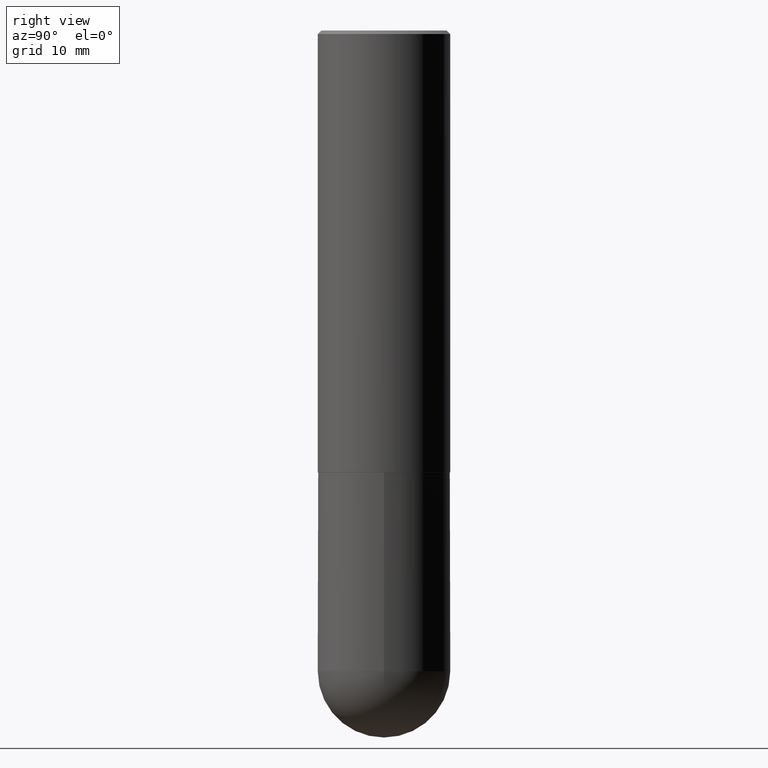
[diagram: clean part render]
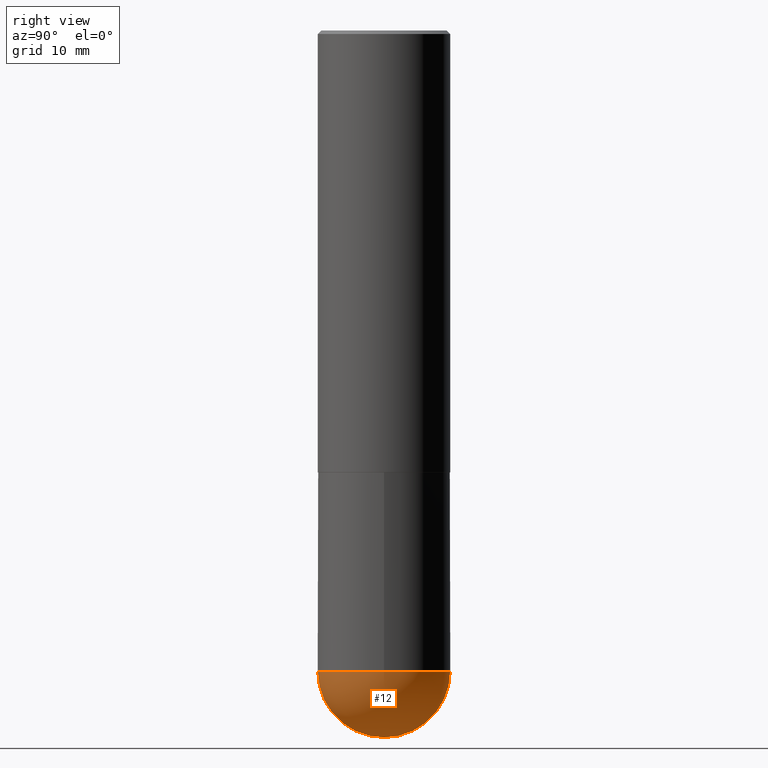
[diagram: same view with one face highlighted and labeled with its STEP entity id]
A machine part, right view. The second image highlights one B-rep face of the part: STEP entity #12.
In plain terms, the highlighted spherical surface has radius 9.525 mm.
Its self-contained STEP definition (entity closure, byte-faithful):
#2 = DIRECTION ( 'NONE',  ( -2.445468806185136597E-29, 3.491481338843145583E-15, 1.000000000000000000 ) ) ;
#4 = DIRECTION ( 'NONE',  ( 1.000000000000000000, -6.982962677686265922E-15, 4.883557194083112340E-29 ) ) ;
#9 = DIRECTION ( 'NONE',  ( -2.445468806185136597E-29, 3.491481338843145583E-15, 1.000000000000000000 ) ) ;
#12 = ADVANCED_FACE ( 'NONE', ( #86 ), #46, .T. ) ;
#14 = VERTEX_POINT ( 'NONE', #249 ) ;
#27 = DIRECTION ( 'NONE',  ( 6.982962677686266711E-15, 1.000000000000000000, -2.913971193241878005E-15 ) ) ;
#33 = DIRECTION ( 'NONE',  ( 6.982962677686265922E-15, 1.000000000000000000, 0.000000000000000000 ) ) ;
#40 = ORIENTED_EDGE ( 'NONE', *, *, #233, .F. ) ;
#46 = SPHERICAL_SURFACE ( 'NONE', #59, 0.3750000000000003886 ) ;
#59 = AXIS2_PLACEMENT_3D ( 'NONE', #83, #114, #27 ) ;
#63 = EDGE_CURVE ( 'NONE', #14, #398, #313, .T. ) ;
#66 = AXIS2_PLACEMENT_3D ( 'NONE', #213, #80, #349 ) ;
#69 = CARTESIAN_POINT ( 'NONE',  ( 8.864824422421120163E-29, -1.265661985330640259E-14, -3.624999999999999556 ) ) ;
#70 = VERTEX_POINT ( 'NONE', #314 ) ;
#73 = CIRCLE ( 'NONE', #151, 0.3750000000000003886 ) ;
#80 = DIRECTION ( 'NONE',  ( -1.000000000000000000, 7.105427357601001070E-15, -4.926315508542082329E-29 ) ) ;
#83 = CARTESIAN_POINT ( 'NONE',  ( 8.533704644507233916E-29, -1.313080222144645289E-14, -3.624999999999999556 ) ) ;
#86 = FACE_OUTER_BOUND ( 'NONE', #174, .T. ) ;
#98 = VERTEX_POINT ( 'NONE', #144 ) ;
#114 = DIRECTION ( 'NONE',  ( -1.000000000000000000, 6.982962677686266711E-15, -4.883557194083113462E-29 ) ) ;
#123 = DIRECTION ( 'NONE',  ( 1.000000000000000000, -6.982962677686265922E-15, 0.000000000000000000 ) ) ;
#124 = CARTESIAN_POINT ( 'NONE',  ( 8.864824422421120163E-29, -1.265661985330640259E-14, -3.624999999999999556 ) ) ;
#144 = CARTESIAN_POINT ( 'NONE',  ( 2.618611004132438763E-15, 0.3749999999999873990, -3.625000000000000888 ) ) ;
#151 = AXIS2_PLACEMENT_3D ( 'NONE', #154, #4, #33 ) ;
#154 = CARTESIAN_POINT ( 'NONE',  ( 8.533704644507233916E-29, -1.313080222144645289E-14, -3.624999999999999556 ) ) ;
#162 = ORIENTED_EDGE ( 'NONE', *, *, #277, .T. ) ;
#174 = EDGE_LOOP ( 'NONE', ( #197, #162, #409, #40 ) ) ;
#193 = CIRCLE ( 'NONE', #209, 0.3750000000000001110 ) ;
#197 = ORIENTED_EDGE ( 'NONE', *, *, #63, .F. ) ;
#209 = AXIS2_PLACEMENT_3D ( 'NONE', #124, #2, #123 ) ;
#213 = CARTESIAN_POINT ( 'NONE',  ( 8.533704644507233916E-29, -1.313080222144645289E-14, -3.624999999999999556 ) ) ;
#233 = EDGE_CURVE ( 'NONE', #398, #70, #193, .T. ) ;
#234 = DIRECTION ( 'NONE',  ( 1.000000000000000000, -6.982962677686265922E-15, 0.000000000000000000 ) ) ;
#249 = CARTESIAN_POINT ( 'NONE',  ( 9.466789814748773816E-29, -1.441714559602862136E-14, -4.000000000000000000 ) ) ;
#254 = AXIS2_PLACEMENT_3D ( 'NONE', #69, #9, #234 ) ;
#260 = CIRCLE ( 'NONE', #254, 0.3750000000000001110 ) ;
#277 = EDGE_CURVE ( 'NONE', #14, #98, #73, .T. ) ;
#313 = CIRCLE ( 'NONE', #66, 0.3750000000000003886 ) ;
#314 = CARTESIAN_POINT ( 'NONE',  ( 0.3750000000000001110, -1.331127260433948773E-14, -3.624999999999999556 ) ) ;
#328 = CARTESIAN_POINT ( 'NONE',  ( -2.664535259100290106E-15, -0.3750000000000131006, -3.624999999999998668 ) ) ;
#349 = DIRECTION ( 'NONE',  ( -7.105427357600999492E-15, -1.000000000000000000, 0.000000000000000000 ) ) ;
#350 = EDGE_CURVE ( 'NONE', #70, #98, #260, .T. ) ;
#398 = VERTEX_POINT ( 'NONE', #328 ) ;
#409 = ORIENTED_EDGE ( 'NONE', *, *, #350, .F. ) ;